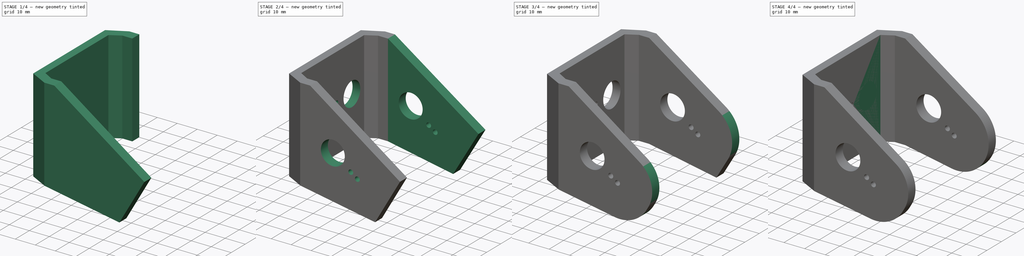
[diagram: build sequence overview — one tinted view per stage of 4, left to right]
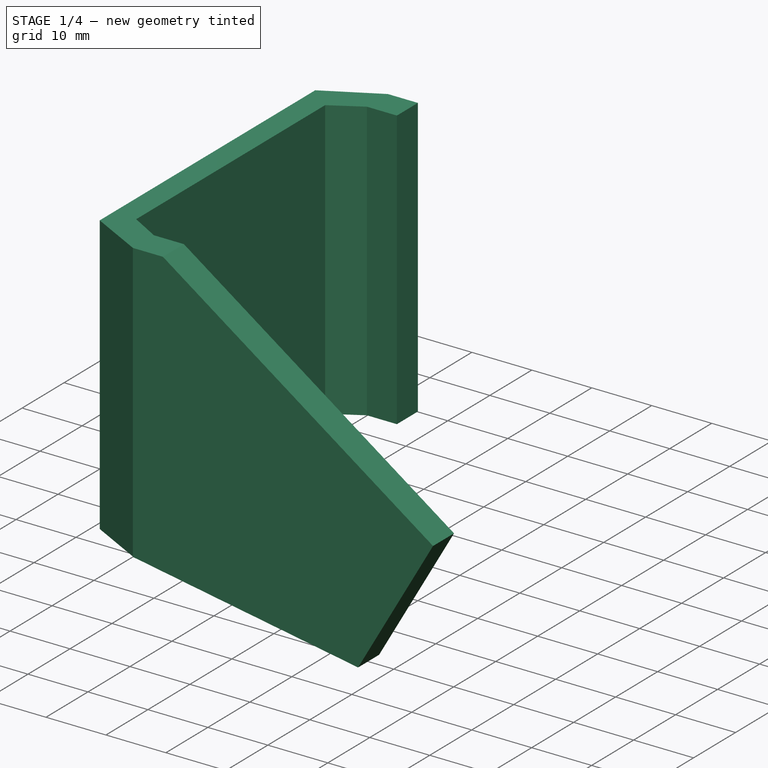
[diagram: stage 1 of 4 — iso view after this stage's code; geometry added in this stage tinted green]
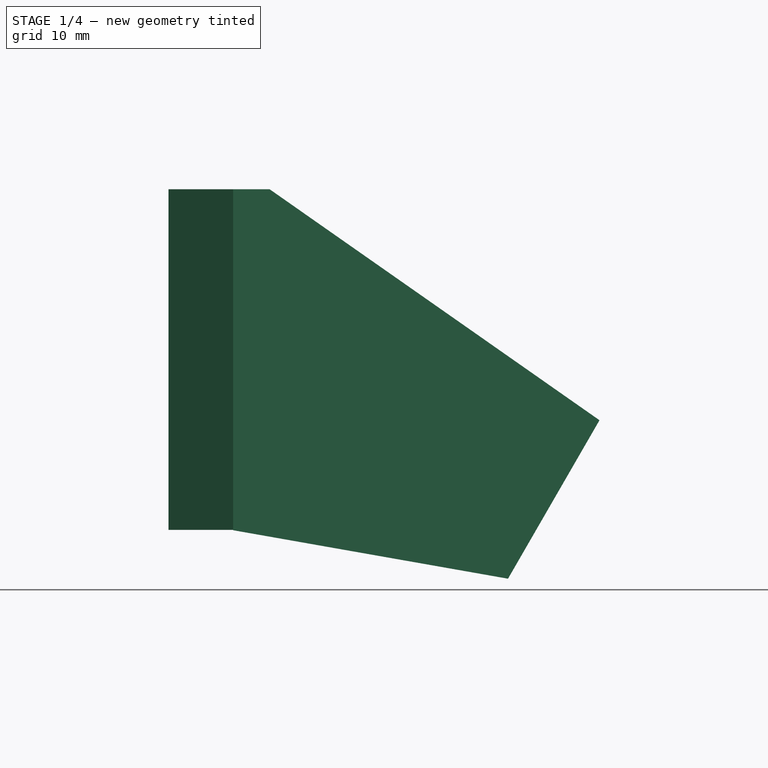
[diagram: stage 1 of 4 — front view after this stage's code; geometry added in this stage tinted green]
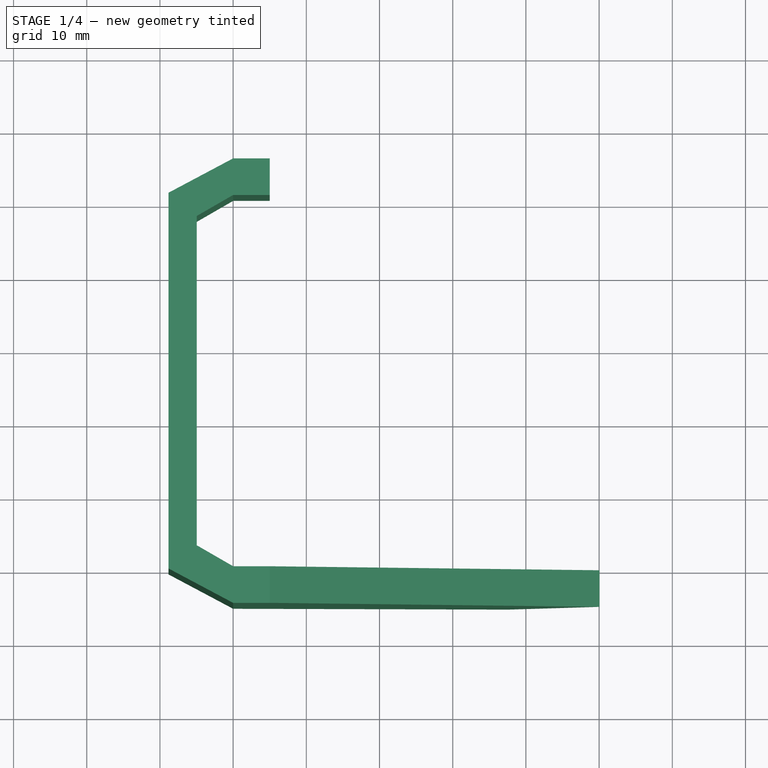
[diagram: stage 1 of 4 — top view after this stage's code; geometry added in this stage tinted green]
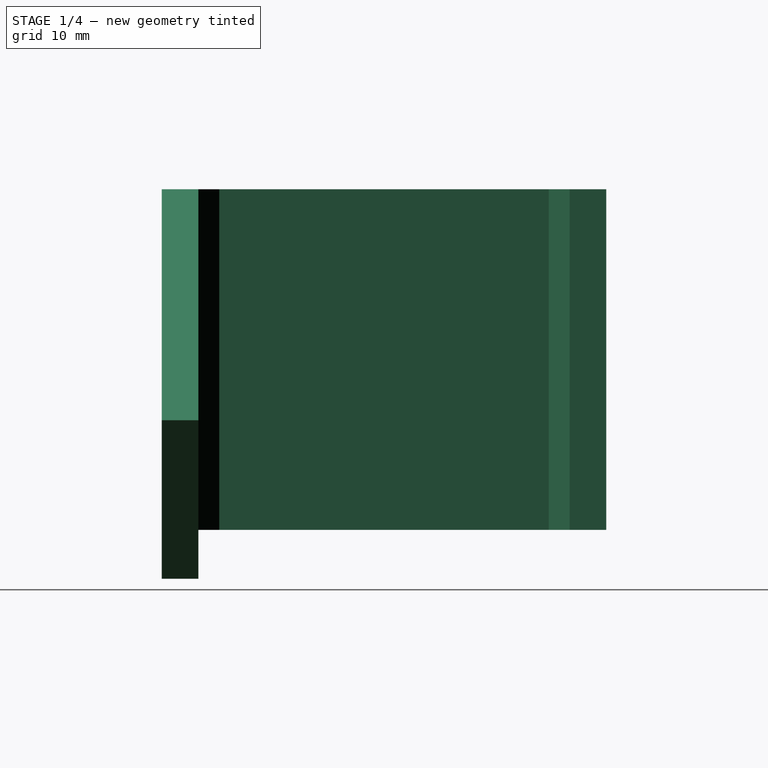
[diagram: stage 1 of 4 — right view after this stage's code; geometry added in this stage tinted green]
FCSTD DOCUMENT  (FreeCAD 0.16R6707 (Git))
Label: hombro
License: All rights reserved
LicenseURL: http://en.wikipedia.org/wiki/All_rights_reserved
objects: App::MeasureDistance×8, Sketcher::SketchObject×6, PartDesign::Fillet×6, PartDesign::Pad×4, PartDesign::Pocket×2, App::DocumentObjectGroup×1
note: 24 computed .brp shape members not serialized (recipe doc carries the construction recipe); baked Part::Feature solids carry a one-line shape summary decoded from their .brp

FEATURE [Sketcher::SketchObject] Sketch
  Placement = pos=(0,0,0) rot=(1,0,0;1.5708rad)
  sketch-geometry (5):
    g0: LineSegment StartX=0 StartY=0 StartZ=0 EndX=37.5534 EndY=-6.62167 EndZ=0
    g1: LineSegment StartX=37.5534 StartY=-6.62167 StartZ=0 EndX=50.0534 EndY=15.029 EndZ=0
    g2: LineSegment StartX=50.0534 StartY=15.029 StartZ=0 EndX=5 EndY=46.5757 EndZ=0
    g3: LineSegment StartX=5 StartY=46.5757 StartZ=0 EndX=0 EndY=46.5757 EndZ=0
    g4: LineSegment StartX=0 StartY=46.5757 StartZ=0 EndX=0 EndY=0 EndZ=0
  constraints (14):
    c: Coincident(g0,g1)
    c: Coincident(g1,g2)
    c: Coincident(g2,g3)
    c: Horizontal(g3)
    c: Coincident(g3,g4)
    c: Coincident(g4,g0)
    c: Vertical(g4)
    c: Angle(g3,g2) = 2.53073
    c: Angle(g0,g4) = 1.74533
    c: Distance(g2,g1) = 55
    c: Distance(g1,g0) = 25
    c: DistanceX(g3,g3) = 5
    c: Angle(g1,g0) = 1.91986
    c: Coincident(g0,g-1)
FEATURE [PartDesign::Pad] Pad  label="lateral"
  Length = 5
  Length2 = 100
  Placement = pos=(0,0,0) rot=(1,0,0;1.5708rad)
  Sketch = -> Sketch
  Type = 0
FEATURE [Sketcher::SketchObject] Sketch001
  ExternalGeometry = -> [Pad]
  Placement = pos=(0,0,46.5757) rot=(0,0,1;3.14159rad)
  Support = -> Pad [Face4]
  sketch-geometry (8):
    g0: LineSegment StartX=0 StartY=5 StartZ=0 EndX=8.82948 EndY=0.305284 EndZ=0
    g1: LineSegment StartX=8.82948 StartY=0.305284 StartZ=0 EndX=8.82948 EndY=-51.0369 EndZ=0
    g2: LineSegment StartX=8.82948 StartY=-51.0369 StartZ=0 EndX=0 EndY=-55.7316 EndZ=0
    g3: LineSegment StartX=0 StartY=-55.7316 StartZ=0 EndX=0 EndY=-50.7316 EndZ=0
    g4: LineSegment StartX=0 StartY=-50.7316 StartZ=0 EndX=4.96369 EndY=-47.8658 EndZ=0
    g5: LineSegment StartX=4.96369 StartY=-47.8658 StartZ=0 EndX=4.96369 EndY=-2.86579 EndZ=0
    g6: LineSegment StartX=4.96369 StartY=-2.86579 StartZ=0 EndX=0 EndY=0 EndZ=0
    g7: LineSegment StartX=0 StartY=0 StartZ=0 EndX=0 EndY=5 EndZ=0
  constraints (22):
    c: Coincident(g-3,g0)
    c: Coincident(g0,g1)
    c: Vertical(g1)
    c: Coincident(g1,g2)
    c: Coincident(g2,g3)
    c: Coincident(g3,g4)
    c: Coincident(g4,g5)
    c: Vertical(g5)
    c: Coincident(g5,g6)
    c: Coincident(g6,g-1)
    c: Coincident(g6,g7)
    c: Coincident(g7,g0)
    c: Vertical(g3)
    c: Angle(g6,g5) = 2.0944
    c: Distance(g0,g5) = 5
    c: Angle(g0,g1) = 2.05949
    c: Angle(g5,g4) = 2.0944
    c: Distance(g1,g4) = 5
    c: Angle(g1,g2) = 2.05949
    c: Distance(g0,g0) = 10
    c: Equal(g0,g2)
    c: DistanceY(g5,g5) = 45
FEATURE [PartDesign::Pad] Pad001  label="union_tronco"
  Length = 46.52
  Length2 = 100
  Placement = pos=(0,0,0) rot=(1,0,0;1.5708rad)
  Reversed = true
  Sketch = -> Sketch001
  Type = 0
FEATURE [App::MeasureDistance] Distance  label="Distance: 5 mm"
  Distance = 5
  P1 = (0,-5.00001,46.5757)
  P2 = (5,-5.00001,46.5757)
FEATURE [App::MeasureDistance] Distance001  label="Distance: 5 mm001"
  Distance = 5
  P1 = (0,-5.55225e-06,46.5757)
  P2 = (0,-5.00001,46.5757)
FEATURE [Sketcher::SketchObject] Sketch002
  ExternalGeometry = -> [Pad001]
  Placement = pos=(0,0,46.5757) rot=(0,0,1;3.14159rad)
  Support = -> Pad001 [Face16]
  sketch-geometry (4):
    g0: LineSegment StartX=-5 StartY=-50.7316 StartZ=0 EndX=0 EndY=-50.7316 EndZ=0
    g1: LineSegment StartX=0 StartY=-50.7316 StartZ=0 EndX=0 EndY=-55.7316 EndZ=0
    g2: LineSegment StartX=0 StartY=-55.7316 StartZ=0 EndX=-5 EndY=-55.7316 EndZ=0
    g3: LineSegment StartX=-5 StartY=-55.7316 StartZ=0 EndX=-5 EndY=-50.7316 EndZ=0
  constraints (11):
    c: Coincident(g0,g1)
    c: Coincident(g1,g2)
    c: Coincident(g2,g3)
    c: Coincident(g3,g0)
    c: Horizontal(g0)
    c: Horizontal(g2)
    c: Vertical(g1)
    c: Vertical(g3)
    c: DistanceX(g2,g2) = 5
    c: DistanceY(g3,g3) = 5
    c: Coincident(g0,g-3)
FEATURE [App::MeasureDistance] Distance002  label="Distance: 46,52 mm"
  Distance = 46.52
  P1 = (0,-5.00001,46.5757)
  P2 = (0,-5,0.0556675)
FEATURE [PartDesign::Pad] Pad002
  Length = 46.52
  Length2 = 100
  Placement = pos=(0,0,0) rot=(1,0,0;1.5708rad)
  Reversed = true
  Sketch = -> Sketch002
  Type = 0
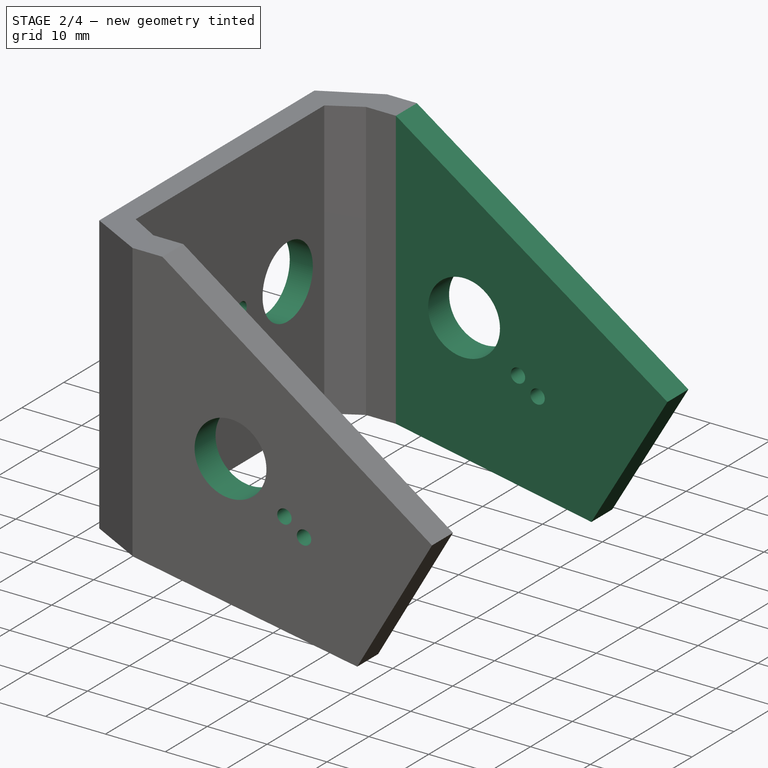
[diagram: stage 2 of 4 — iso view after this stage's code; geometry added in this stage tinted green]
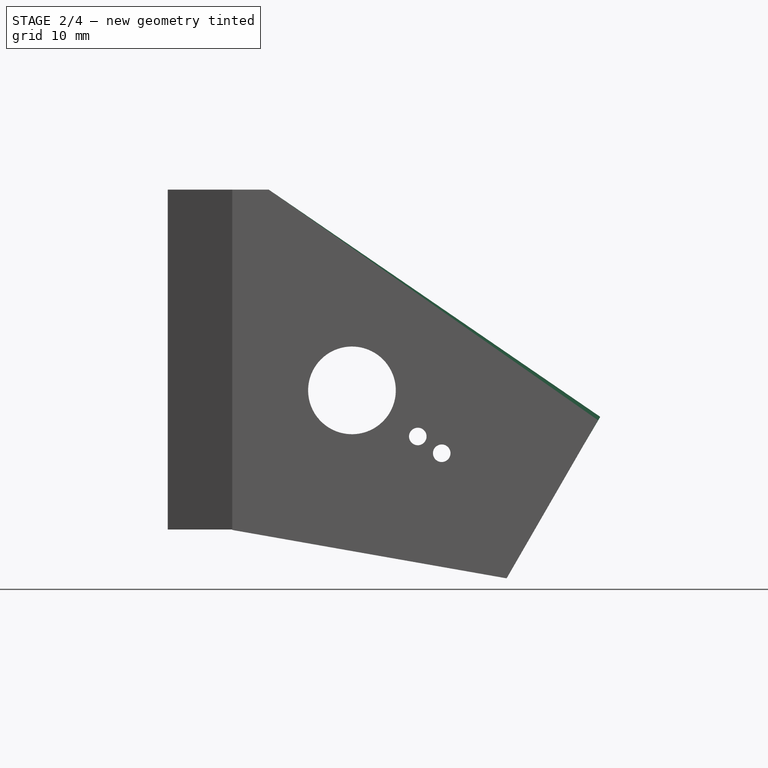
[diagram: stage 2 of 4 — front view after this stage's code; geometry added in this stage tinted green]
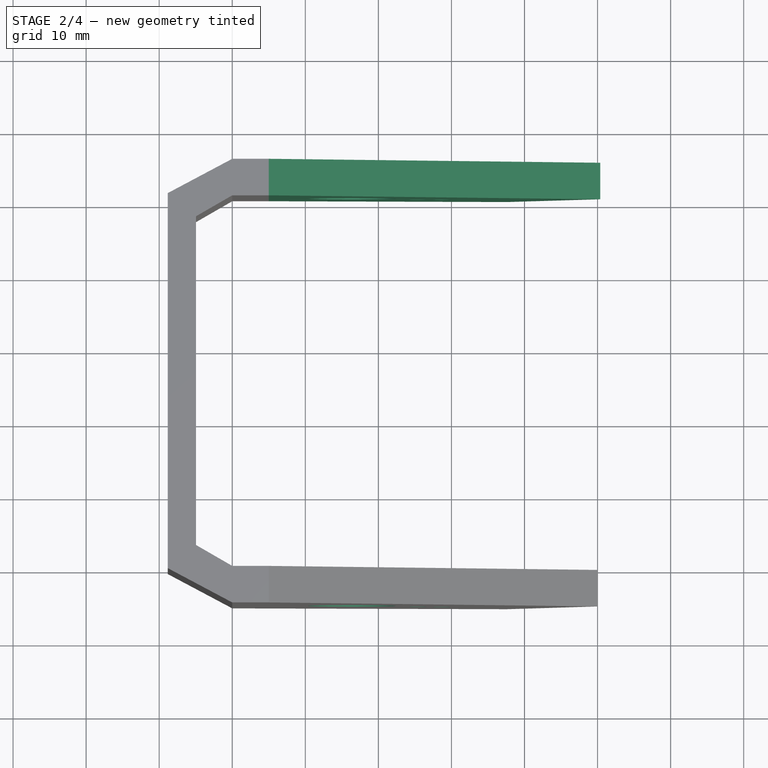
[diagram: stage 2 of 4 — top view after this stage's code; geometry added in this stage tinted green]
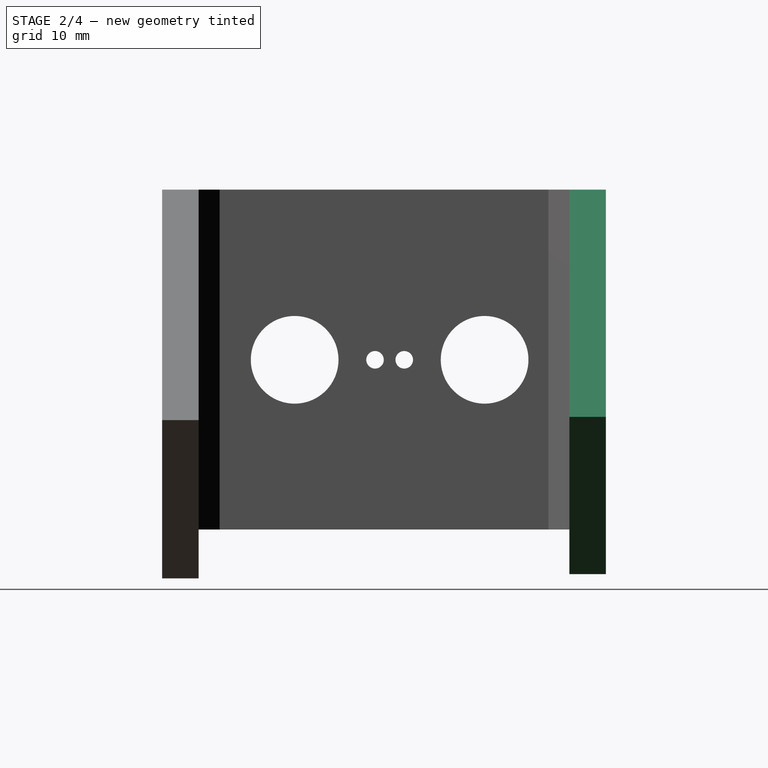
[diagram: stage 2 of 4 — right view after this stage's code; geometry added in this stage tinted green]
FEATURE [App::MeasureDistance] Distance003  label="Distance: 55 mm"
  Distance = 55
  P1 = (5,-5.00001,46.5757)
  P2 = (50.0534,-5,15.029)
FEATURE [App::MeasureDistance] Distance004  label="Distance: 25 mm"
  Distance = 25
  P1 = (37.5534,-5,-6.62167)
  P2 = (50.0534,-5,15.029)
FEATURE [App::MeasureDistance] Distance005  label="Distance: 38,1327 mm"
  Distance = 38.1327
  P1 = (0,-5,-5.96046e-07)
  P2 = (37.5534,-5,-6.62167)
FEATURE [Sketcher::SketchObject] Sketch003
  ExternalGeometry = -> [Pad002]
  Placement = pos=(0,55.7316,0) rot=(-1,0,0;1.5708rad)
  Support = -> Pad002 [Face17]
  sketch-geometry (4):
    g0: LineSegment StartX=5 StartY=-0.0556681 StartZ=0 EndX=5 EndY=-46.5757 EndZ=0
    g1: LineSegment StartX=5 StartY=-46.5757 StartZ=0 EndX=50.3682 EndY=-15.4834 EndZ=0
    g2: LineSegment StartX=50.3682 StartY=-15.4834 StartZ=0 EndX=37.6512 EndY=6.04055 EndZ=0
    g3: LineSegment StartX=37.6512 StartY=6.04055 StartZ=0 EndX=5 EndY=-0.0556681 EndZ=0
  constraints (11):
    c: Vertical(g0)
    c: Coincident(g0,g1)
    c: Coincident(g1,g2)
    c: Coincident(g2,g3)
    c: Coincident(g3,g0)
    c: Coincident(g0,g-3)
    c: Coincident(g0,g-3)
    c: Distance(g0,g1) = 55
    c: Distance(g1,g2) = 25
    c: Distance(g-1,g2) = 38.1327
    c: Angle(g3,g2) = 1.91986
FEATURE [App::MeasureDistance] Distance006  label="Distance: 38,1327 mm001"
  Distance = 38.1327
  P1 = (0,-5,-5.96046e-07)
  P2 = (37.5534,-5,-6.62167)
FEATURE [PartDesign::Pad] Pad003  label="lateral001"
  Length = 5
  Length2 = 100
  Placement = pos=(0,0,0) rot=(1,0,0;1.5708rad)
  Reversed = true
  Sketch = -> Sketch003
  Type = 0
FEATURE [App::MeasureDistance] Distance007  label="Distance: 46,3421 mm"
  Distance = 46.3421
  P1 = (-8.82948,-0.305284,0.055668)
  P2 = (-8.82948,46.0369,0.0556736)
FEATURE [App::DocumentObjectGroup] Grupo
  Group = -> [Distance007,Distance003,Distance004,Distance005,Distance006,Distance,Distance001,Distance002]
FEATURE [Sketcher::SketchObject] Sketch004
  ExternalGeometry = -> [Pad003]
  Placement = pos=(-8.82948,0,0) rot=(0.707107,0,-0.707107;3.14159rad)
  Support = -> Pad003 [Face11]
  sketch-geometry (7):
    g0: Circle CenterX=-23.2878 CenterY=-13.1364 CenterZ=0 NormalX=0 NormalY=0 NormalZ=1 Radius=6
    g1: Circle CenterX=-23.2878 CenterY=-24.1364 CenterZ=0 NormalX=0 NormalY=0 NormalZ=1 Radius=1.2
    g2: Circle CenterX=-23.2878 CenterY=-28.1364 CenterZ=0 NormalX=0 NormalY=0 NormalZ=1 Radius=1.2
    g3: LineSegment [constr] StartX=-23.2878 StartY=-13.1364 StartZ=0 EndX=-23.2878 EndY=-51.0369 EndZ=0
    g4: LineSegment [constr] StartX=-46.5757 StartY=-13.1364 StartZ=0 EndX=-23.2878 EndY=-13.1364 EndZ=0
    g5: LineSegment [constr] StartX=0 StartY=-13.1364 StartZ=0 EndX=-23.2878 EndY=-13.1364 EndZ=0
    g6: Circle CenterX=-23.2878 CenterY=-39.1364 CenterZ=0 NormalX=0 NormalY=0 NormalZ=1 Radius=6
  constraints (21):
    c: PointOnObject(g3,g-4)
    c: Vertical(g3)
    c: PointOnObject(g4,g-5)
    c: Horizontal(g4)
    c: Horizontal(g5)
    c: Equal(g4,g5)
    c: Coincident(g5,g3)
    c: Coincident(g4,g3)
    c: PointOnObject(g5,g-2)
    c: Coincident(g0,g3)
    c: PointOnObject(g1,g3)
    c: PointOnObject(g2,g3)
    c: Radius(g0) = 6
    c: Radius(g2) = 1.2
    c: Equal(g2,g1)
    c: Distance(g0,g1) = 11
    c: Distance(g1,g2) = 4
    c: PointOnObject(g6,g3)
    c: Equal(g6,g0)
    c: DistanceY(g-1,g0) = -13.1364
    c: Distance(g6,g2) = 11
FEATURE [PartDesign::Pocket] Pocket
  Length = 5
  Placement = pos=(0,0,0) rot=(1,0,0;1.5708rad)
  Sketch = -> Sketch004
  Type = 0
FEATURE [Sketcher::SketchObject] Sketch005
  ExternalGeometry = -> [Pocket]
  Placement = pos=(0,-5,0) rot=(1,0,0;1.5708rad)
  Support = -> Pocket [Face5]
  sketch-geometry (5):
    g0: Circle CenterX=16.383 CenterY=19.1041 CenterZ=0 NormalX=0 NormalY=0 NormalZ=1 Radius=6
    g1: Circle CenterX=25.3937 CenterY=12.7948 CenterZ=0 NormalX=0 NormalY=0 NormalZ=1 Radius=1.2
    g2: Circle CenterX=28.6703 CenterY=10.5005 CenterZ=0 NormalX=0 NormalY=0 NormalZ=1 Radius=1.2
    g3: LineSegment [constr] StartX=42.0357 StartY=1.14196 StartZ=0 EndX=21.0178 EndY=15.8588 EndZ=0
    g4: LineSegment [constr] StartX=21.0178 StartY=15.8588 StartZ=0 EndX=0 EndY=30.5757 EndZ=0
  constraints (16):
    c: PointOnObject(g3,g-3)
    c: PointOnObject(g4,g-2)
    c: Equal(g4,g3)
    c: Coincident(g4,g3)
    c: Parallel(g4,g-4)
    c: Parallel(g3,g-4)
    c: PointOnObject(g0,g4)
    c: PointOnObject(g1,g4)
    c: PointOnObject(g2,g3)
    c: Radius(g0) = 6
    c: Distance(g0,g1) = 11
    c: Distance(g1,g2) = 4
    c: Radius(g2) = 1.2
    c: Equal(g2,g1)
    c: Distance(g4,g0) = 20
    c: Distance(g4,g-5) = 16
FEATURE [PartDesign::Pocket] Pocket001
  Length = 5
  Placement = pos=(0,0,0) rot=(1,0,0;1.5708rad)
  Sketch = -> Sketch005
  Type = 1
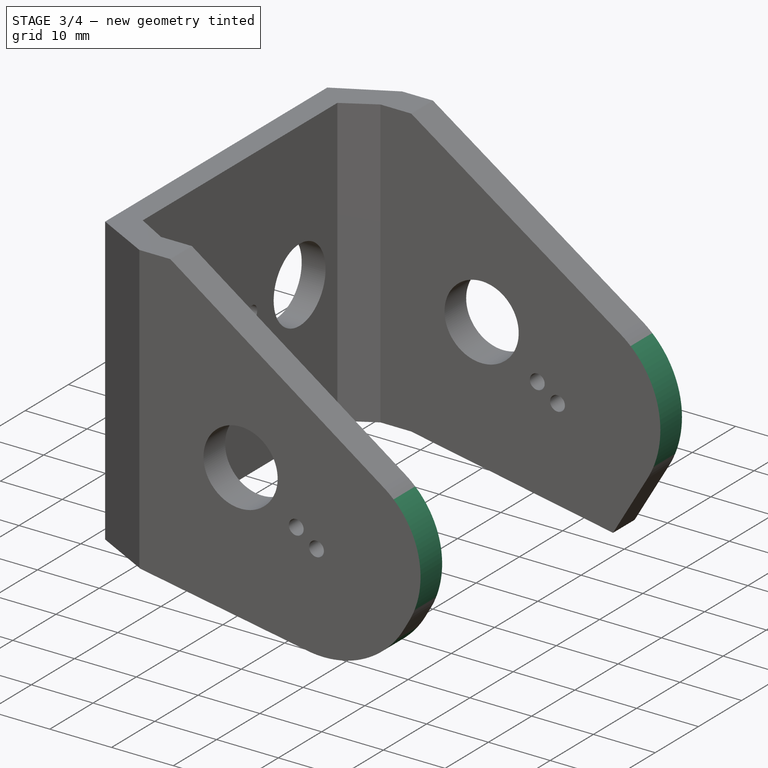
[diagram: stage 3 of 4 — iso view after this stage's code; geometry added in this stage tinted green]
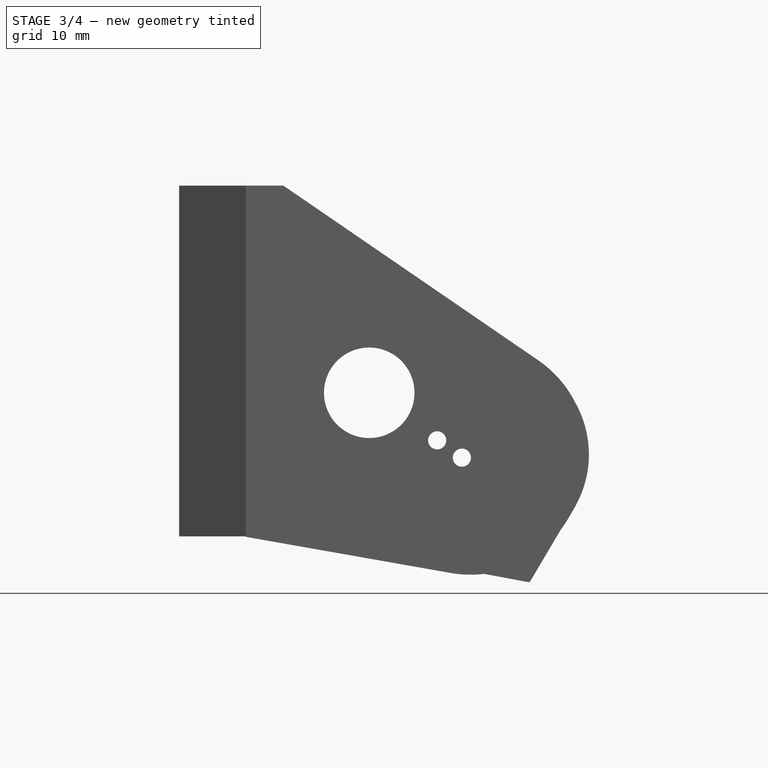
[diagram: stage 3 of 4 — front view after this stage's code; geometry added in this stage tinted green]
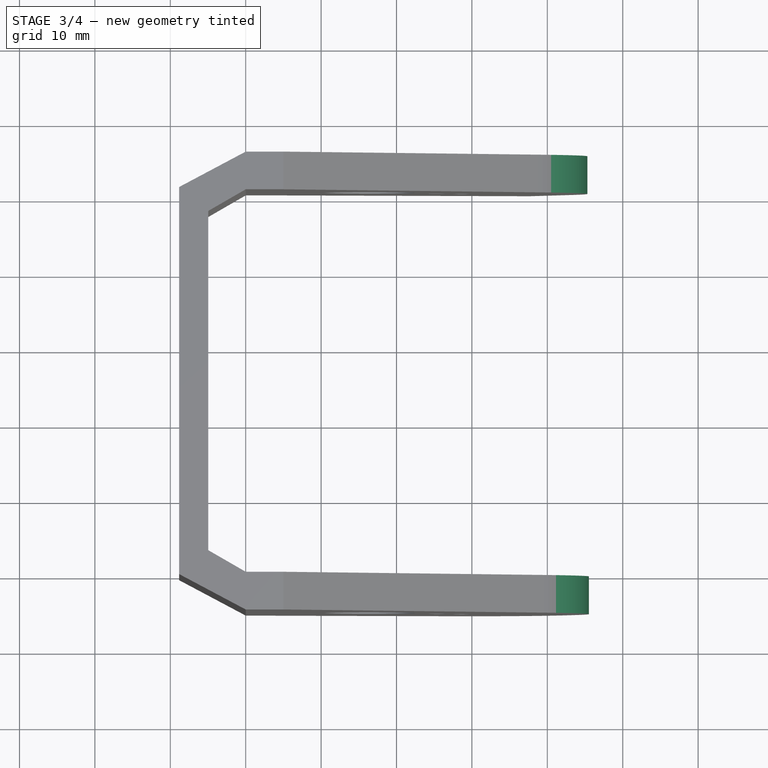
[diagram: stage 3 of 4 — top view after this stage's code; geometry added in this stage tinted green]
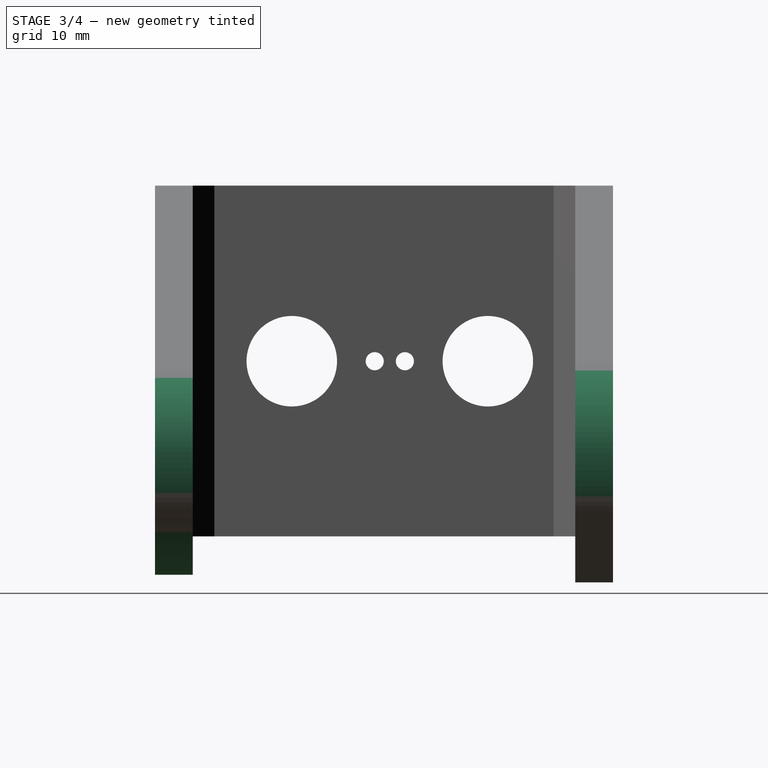
[diagram: stage 3 of 4 — right view after this stage's code; geometry added in this stage tinted green]
FEATURE [PartDesign::Fillet] Fillet
  Base = -> Pocket001 [Edge8]
  Placement = pos=(0,0,0) rot=(1,0,0;1.5708rad)
  Radius = 14
FEATURE [PartDesign::Fillet] Fillet001
  Base = -> Fillet [Edge3]
  Placement = pos=(0,0,0) rot=(1,0,0;1.5708rad)
  Radius = 15
FEATURE [PartDesign::Fillet] Fillet004
  Base = -> Fillet001 [Edge79]
  Placement = pos=(0,0,0) rot=(1,0,0;1.5708rad)
  Radius = 15
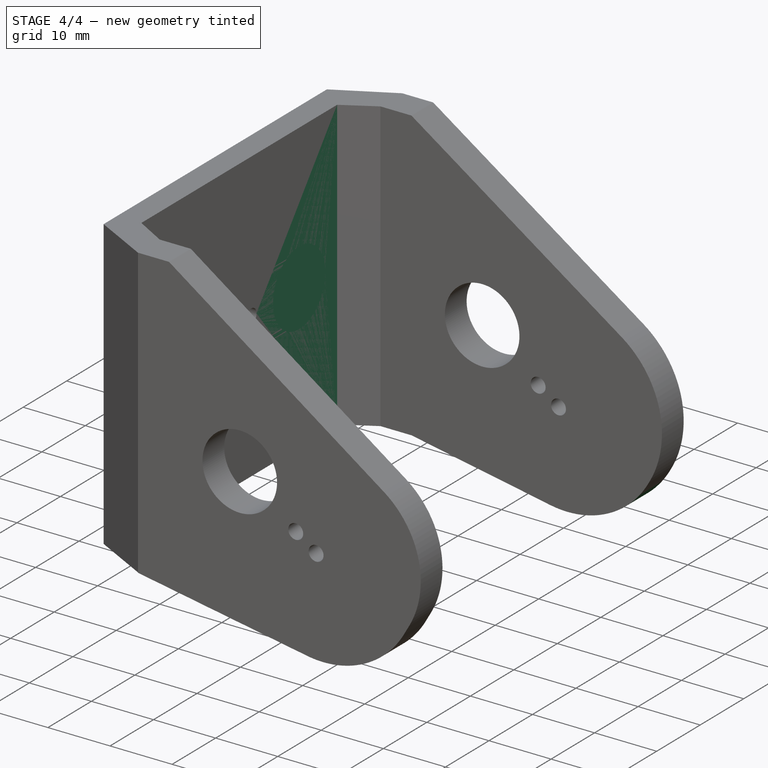
[diagram: stage 4 of 4 — iso view after this stage's code; geometry added in this stage tinted green]
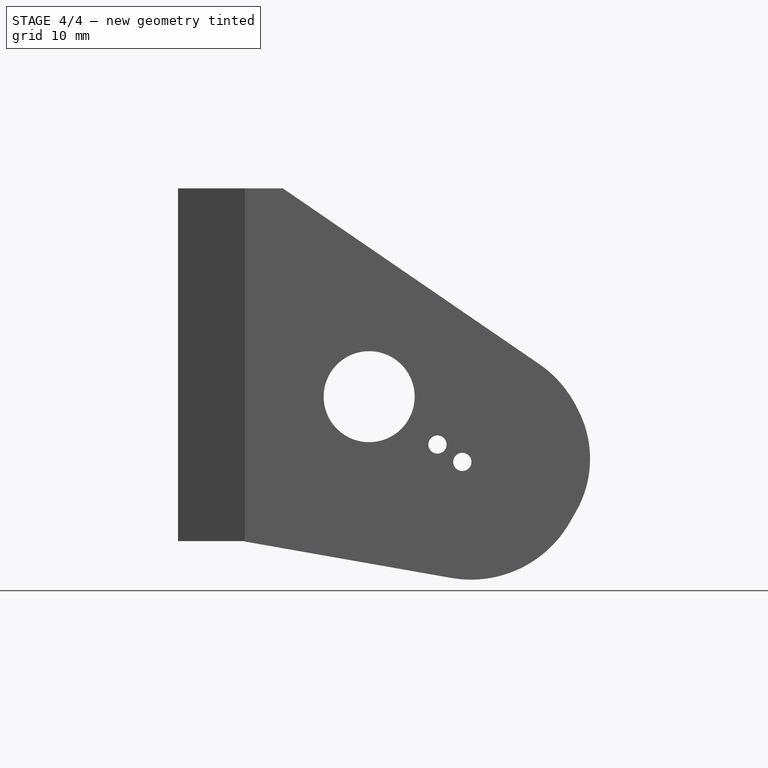
[diagram: stage 4 of 4 — front view after this stage's code; geometry added in this stage tinted green]
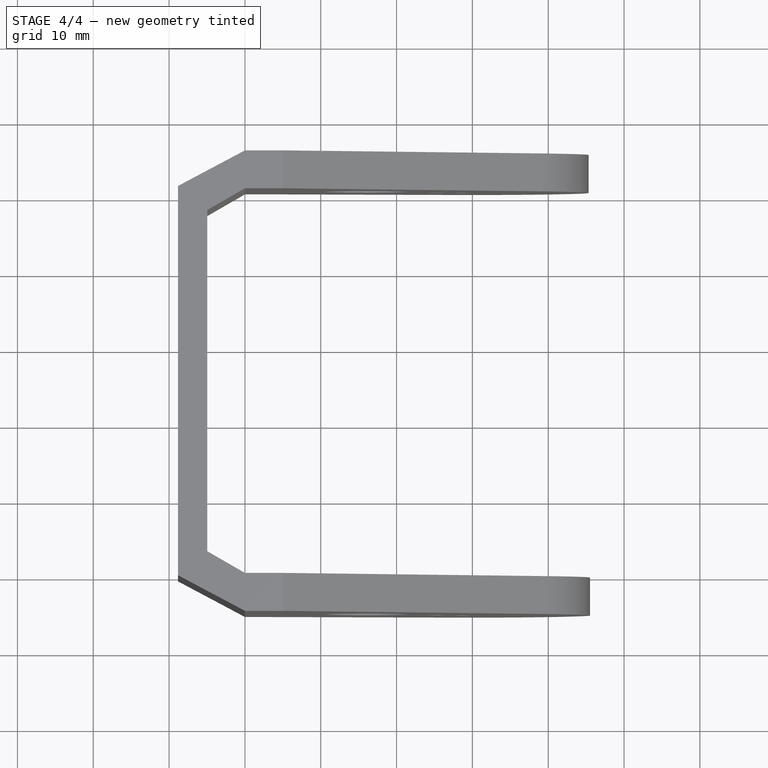
[diagram: stage 4 of 4 — top view after this stage's code; geometry added in this stage tinted green]
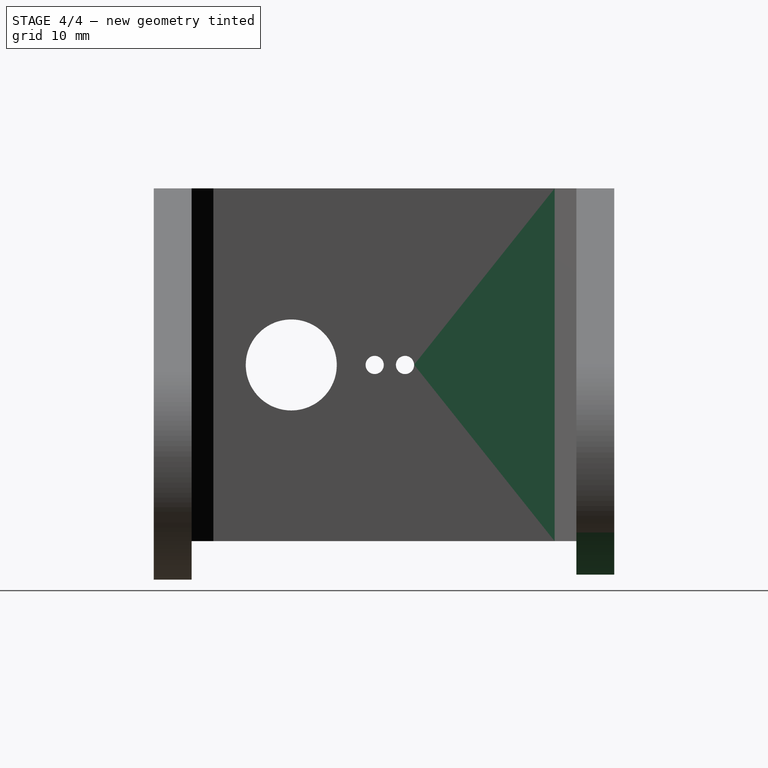
[diagram: stage 4 of 4 — right view after this stage's code; geometry added in this stage tinted green]
FEATURE [PartDesign::Fillet] Fillet002
  Base = -> Fillet001 [Edge76]
  Placement = pos=(0,0,0) rot=(1,0,0;1.5708rad)
  Radius = 15
FEATURE [PartDesign::Fillet] Fillet003
  Base = -> Fillet002 [Edge25]
  Placement = pos=(0,0,0) rot=(1,0,0;1.5708rad)
  Radius = 15
FEATURE [PartDesign::Fillet] Fillet005
  Base = -> Fillet004 [Edge25]
  Placement = pos=(0,0,0) rot=(1,0,0;1.5708rad)
  Radius = 15
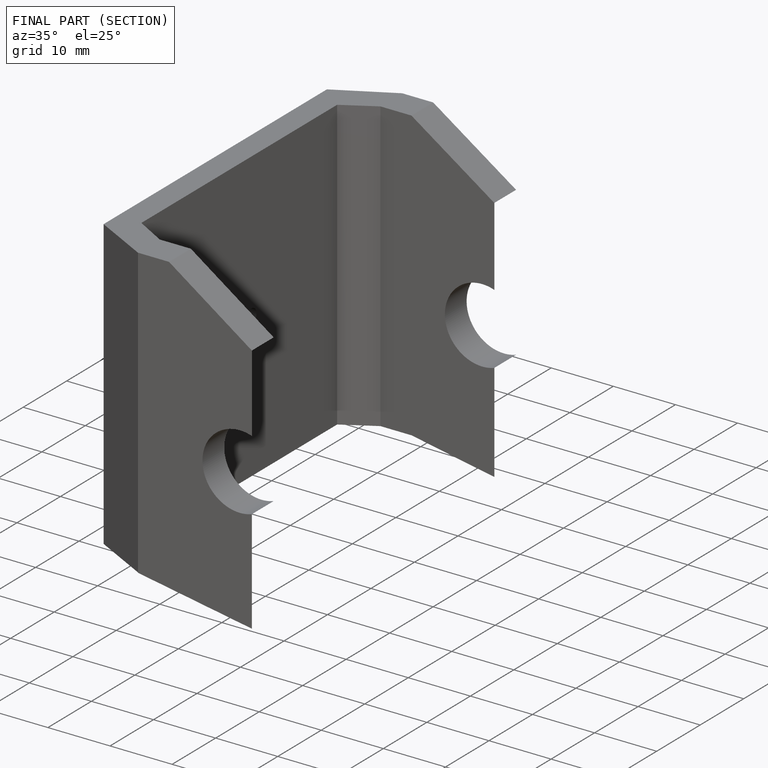
[diagram: finished part — half-section view (interior)]
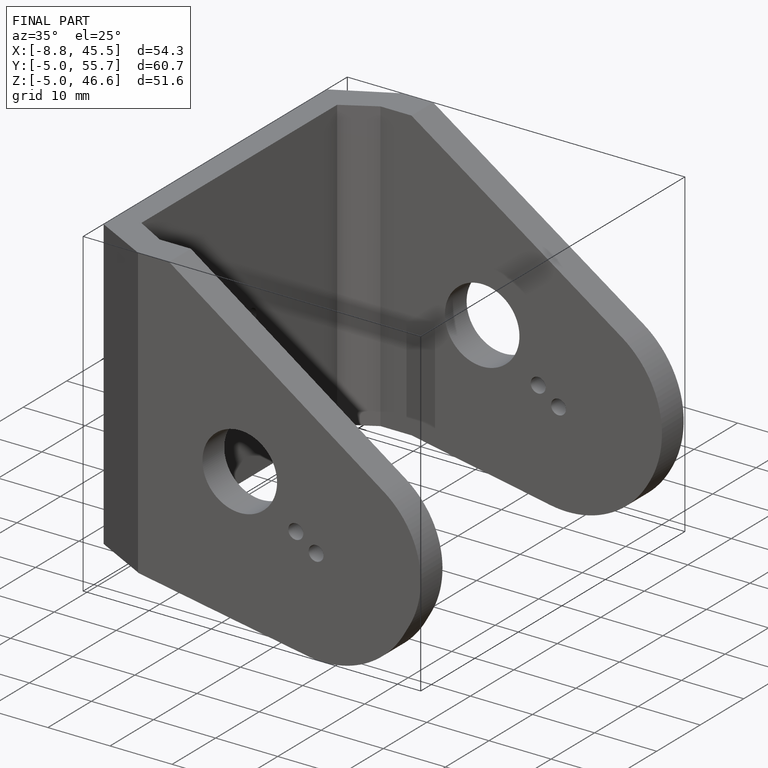
[diagram: finished part — iso view with bounding-box wireframe]
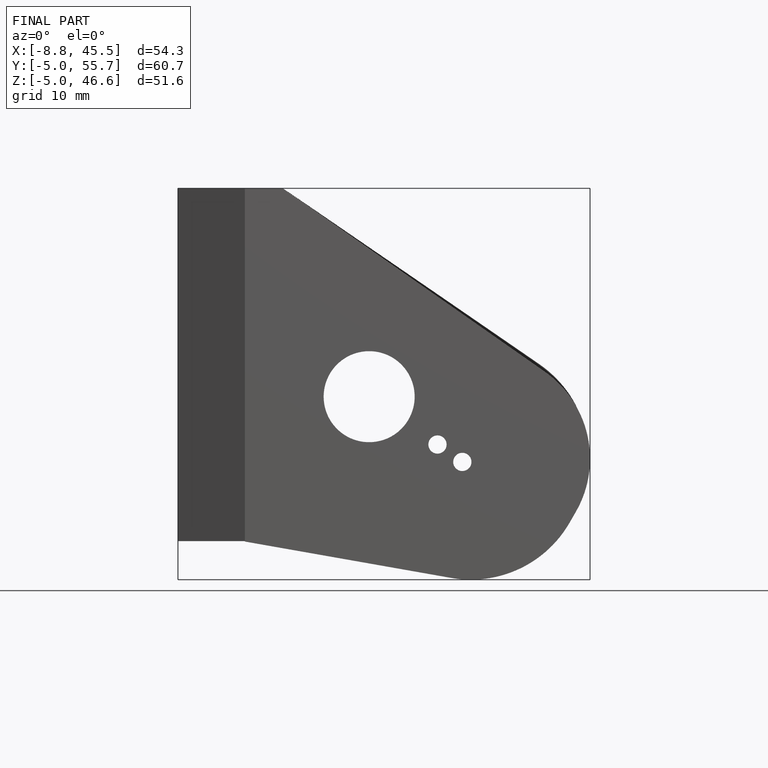
[diagram: finished part — front view with bounding-box wireframe]
